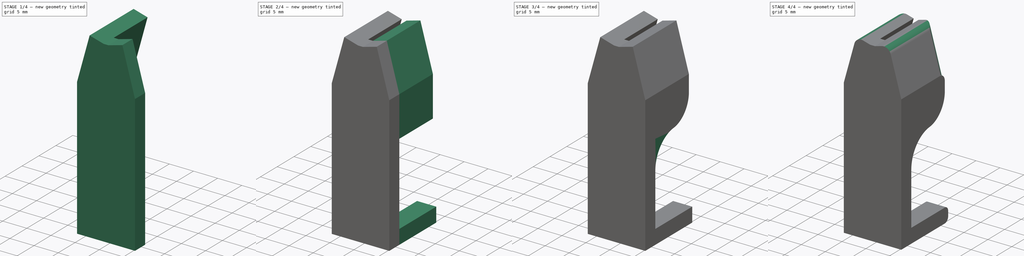
[diagram: build sequence overview — one tinted view per stage of 4, left to right]
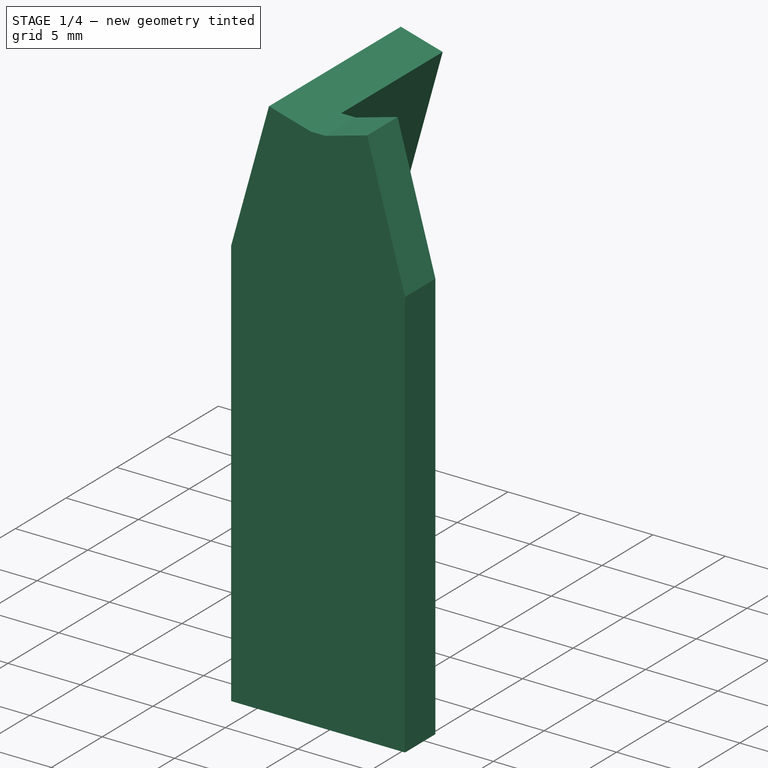
[diagram: stage 1 of 4 — iso view after this stage's code; geometry added in this stage tinted green]
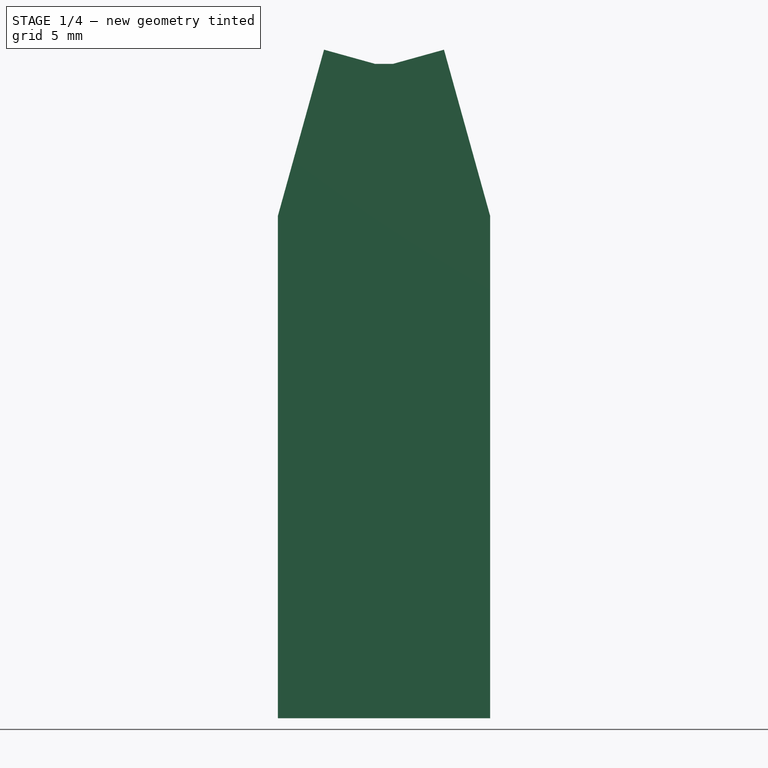
[diagram: stage 1 of 4 — front view after this stage's code; geometry added in this stage tinted green]
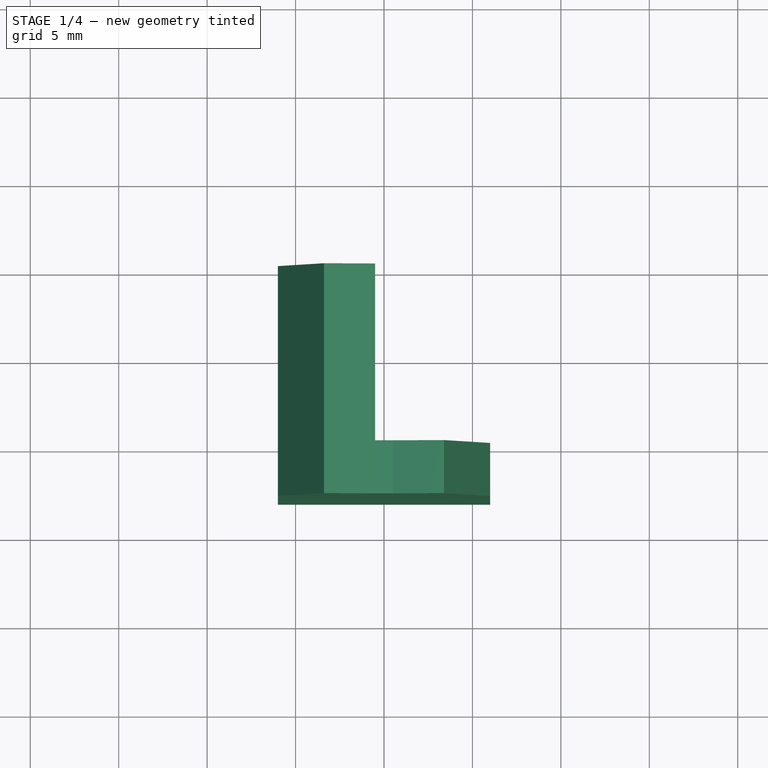
[diagram: stage 1 of 4 — top view after this stage's code; geometry added in this stage tinted green]
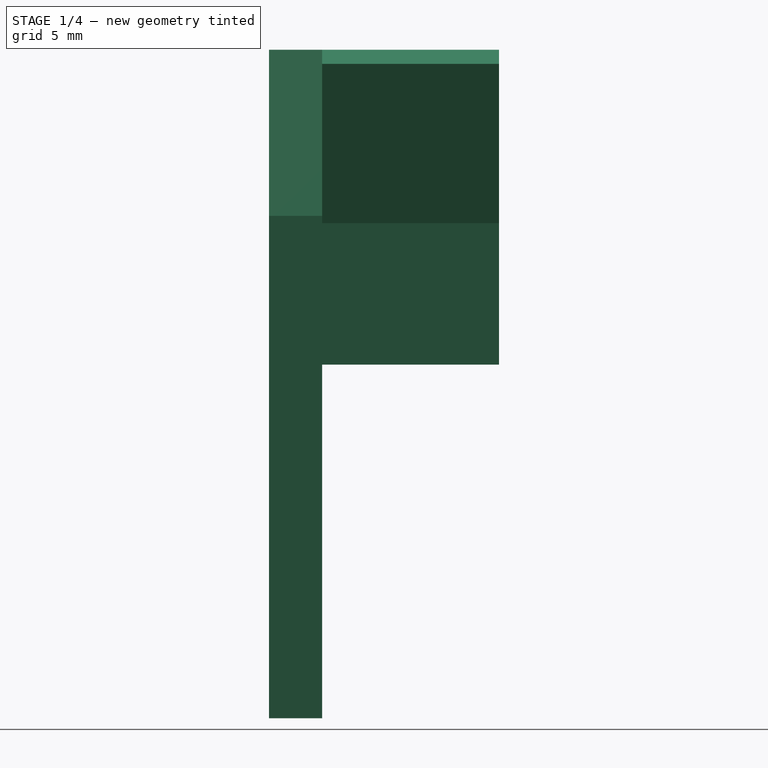
[diagram: stage 1 of 4 — right view after this stage's code; geometry added in this stage tinted green]
FCSTD DOCUMENT  (FreeCAD 0.20R)
Label: TagConnect_holder
License: All rights reserved
LicenseURL: http://en.wikipedia.org/wiki/All_rights_reserved
objects: PartDesign::Fillet×5, Sketcher::SketchObject×3, PartDesign::Pad×3, PartDesign::Mirrored×1, PartDesign::Body×1
note: 21 computed .brp shape members not serialized (recipe doc carries the construction recipe); baked Part::Feature solids carry a one-line shape summary decoded from their .brp

FEATURE [Sketcher::SketchObject] Sketch
  FullyConstrained = false
  MapMode = 5
  Placement = pos=(0,0,0) rot=(1,0,0;1.5708rad)
  Support = -> [XZ_Plane]
  sketch-geometry (7):
    g0: LineSegment StartX=-3 StartY=17 StartZ=0 EndX=-3 EndY=25 EndZ=0
    g1: LineSegment StartX=-3 StartY=25 StartZ=0 EndX=-0.5 EndY=34 EndZ=0
    g2: LineSegment StartX=-0.5 StartY=34 StartZ=0 EndX=-3.39055 EndY=34.8029 EndZ=0
    g3: LineSegment StartX=-3.39055 StartY=34.8029 StartZ=0 EndX=-6 EndY=25.4089 EndZ=0
    g4: LineSegment StartX=-6 StartY=25.4089 StartZ=0 EndX=-6 EndY=17 EndZ=0
    g5: LineSegment StartX=-6 StartY=17 StartZ=0 EndX=-3 EndY=17 EndZ=0
    g6: LineSegment StartX=0 StartY=0 StartZ=0 EndX=0 EndY=25.4373 EndZ=0
  constraints (20):
    c: Vertical(g0)
    c: Coincident(g0,g1)
    c: Coincident(g1,g2)
    c: Coincident(g2,g3)
    c: Coincident(g3,g4)
    c: Vertical(g4)
    c: Coincident(g4,g5)
    c: Coincident(g5,g0)
    c: Horizontal(g5)
    c: Perpendicular(g1,g2)
    c: Parallel(g3,g1)
    c: DistanceX(g5,g5) = 3
    c: Coincident(g6,g-1)
    c: PointOnObject(g6,g-2)
    c: DistanceX(g0,g6) = 3
    c: Equal(g2,g5)
    c: DistanceY(g0,g1) = 9
    c: DistanceX(g1,g6) = 0.5
    c: DistanceY(g0,g0) = 8
    c: DistanceY(g6,g1) = 34
FEATURE [PartDesign::Pad] Pad
  Direction = (0,-1,-2e-16)
  Length = 10
  Length2 = 10
  Placement = pos=(0,0,0) rot=(1,0,0;1.5708rad)
  Profile = -> Sketch
  ReferenceAxis = -> Sketch [N_Axis]
  Type = 0
FEATURE [Sketcher::SketchObject] Sketch001
  ExternalGeometry = -> [Pad]
  FullyConstrained = true
  MapMode = 5
  Placement = pos=(0,-10,-2.2e-15) rot=(1,0,0;1.5708rad)
  Support = -> [Pad]
  sketch-geometry (11):
    g0: LineSegment StartX=-3.39055 StartY=34.8029 StartZ=0 EndX=-6 EndY=25.4089 EndZ=0
    g1: LineSegment StartX=-6 StartY=25.4089 StartZ=0 EndX=-6 EndY=0 EndZ=0
    g2: LineSegment StartX=3.39055 StartY=34.8029 StartZ=0 EndX=6 EndY=25.4089 EndZ=0
    g3: LineSegment StartX=6 StartY=25.4089 StartZ=0 EndX=6 EndY=0 EndZ=0
    g4: GeomPoint X=0 Y=34.8029 Z=0
    g5: LineSegment StartX=-6 StartY=0 StartZ=0 EndX=-6 EndY=-3 EndZ=0
    g6: LineSegment StartX=-6 StartY=-3 StartZ=0 EndX=6 EndY=-3 EndZ=0
    g7: LineSegment StartX=6 StartY=-3 StartZ=0 EndX=6 EndY=0 EndZ=0
    g8: LineSegment StartX=-3.39055 StartY=34.8029 StartZ=0 EndX=-0.5 EndY=34 EndZ=0
    g9: LineSegment StartX=-0.5 StartY=34 StartZ=0 EndX=0.5 EndY=34 EndZ=0
    g10: LineSegment StartX=0.5 StartY=34 StartZ=0 EndX=3.39055 EndY=34.8029 EndZ=0
  constraints (27):
    c: Coincident(g0,g-4)
    c: Coincident(g1,g0)
    c: PointOnObject(g1,g-1)
    c: Vertical(g1)
    c: Vertical(g3)
    c: Coincident(g3,g2)
    c: Vertical(g4,g-1)
    c: Symmetric(g-3,g2,g4)
    c: Horizontal(g2,g0)
    c: Symmetric(g3,g1,g-1)
    c: Coincident(g1,g5)
    c: Vertical(g5)
    c: Coincident(g5,g6)
    c: Horizontal(g6)
    c: Coincident(g7,g3)
    c: Vertical(g7)
    c: DistanceY(g5,g5) = 3
    c: Coincident(g8,g0)
    c: Coincident(g8,g-5)
    c: Coincident(g9,g8)
    c: Horizontal(g9)
    c: Coincident(g10,g9)
    c: Coincident(g10,g2)
    c: Equal(g10,g8)
    c: Coincident(g0,g-3)
    c: Equal(g2,g0)
    c: Coincident(g6,g7)
FEATURE [PartDesign::Pad] Pad001
  BaseFeature = -> Pad
  Direction = (0,-1,-2e-16)
  Length = 3
  Length2 = 10
  Placement = pos=(0,0,0) rot=(1,0,0;1.5708rad)
  Profile = -> Sketch001
  ReferenceAxis = -> Sketch001 [N_Axis]
  Type = 0
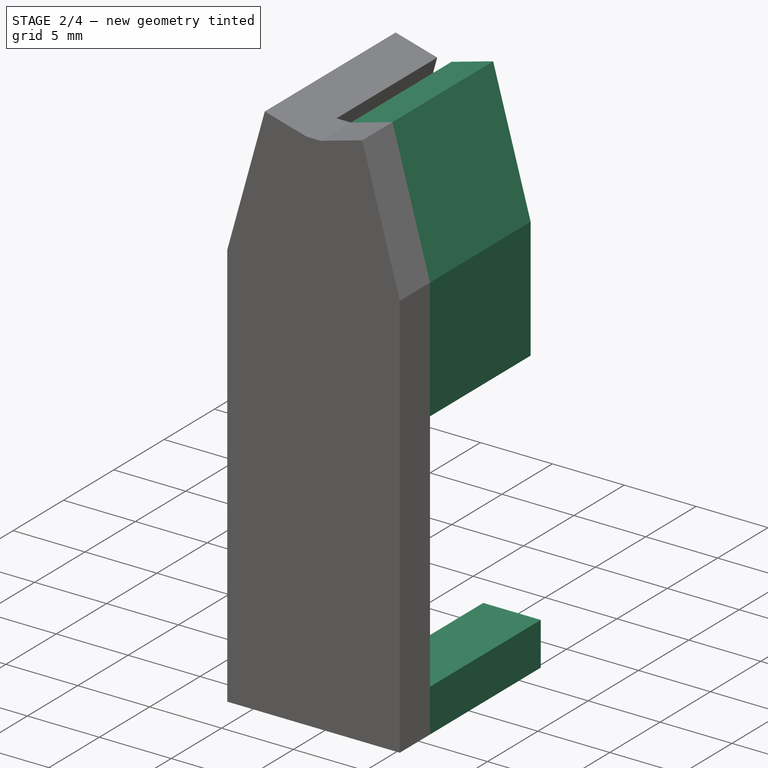
[diagram: stage 2 of 4 — iso view after this stage's code; geometry added in this stage tinted green]
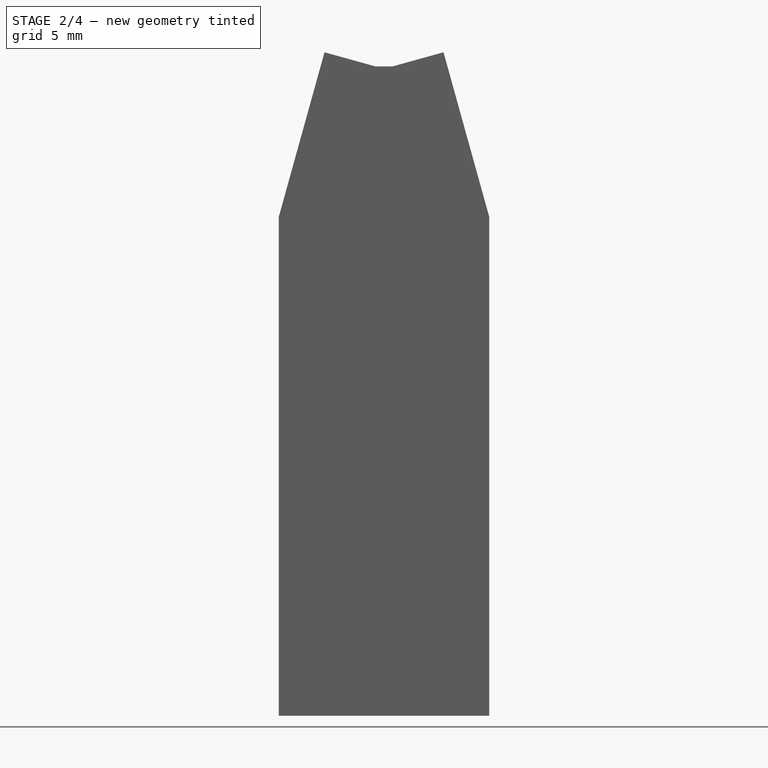
[diagram: stage 2 of 4 — front view after this stage's code; geometry added in this stage tinted green]
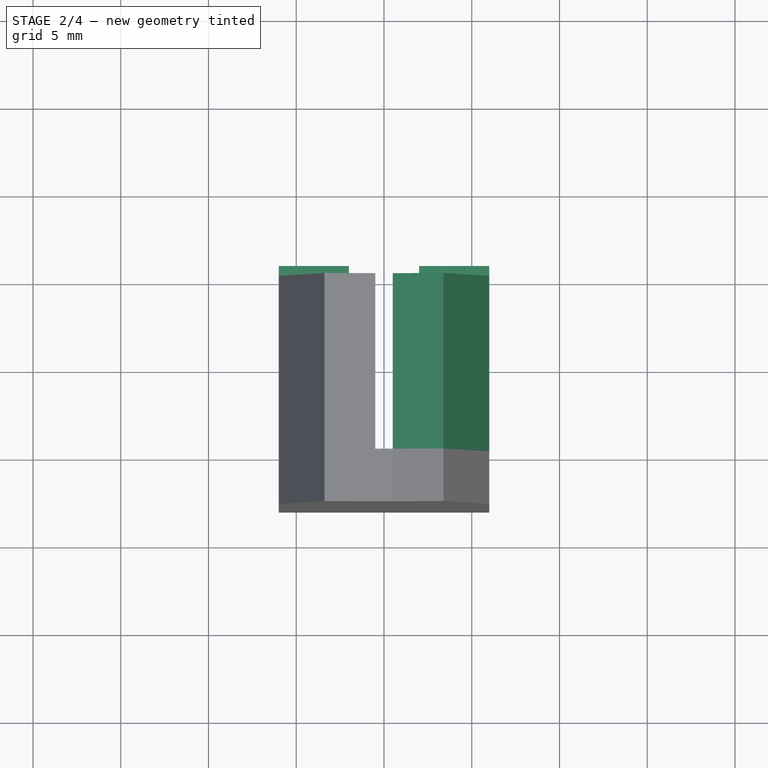
[diagram: stage 2 of 4 — top view after this stage's code; geometry added in this stage tinted green]
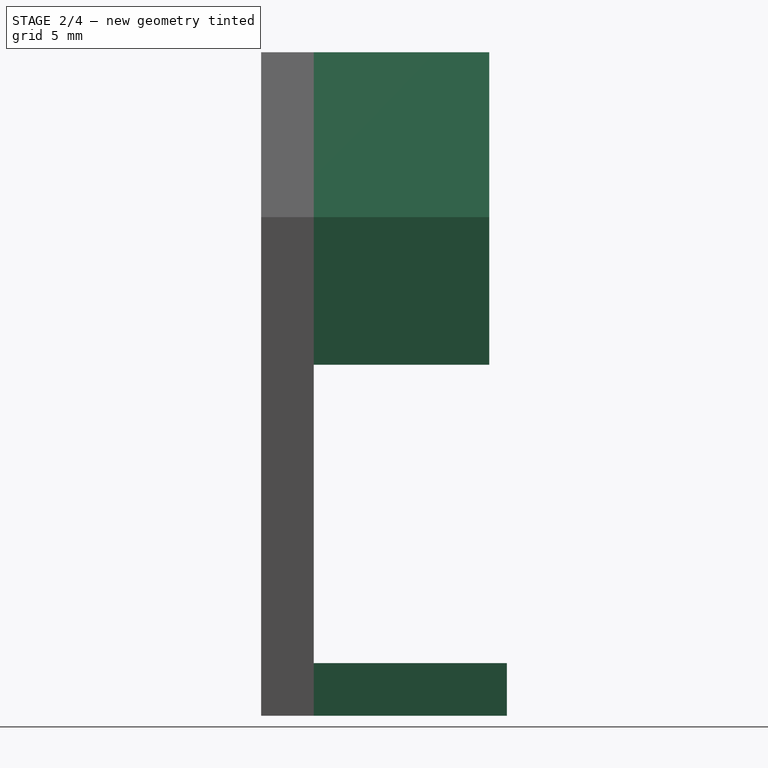
[diagram: stage 2 of 4 — right view after this stage's code; geometry added in this stage tinted green]
FEATURE [Sketcher::SketchObject] Sketch002
  ExternalGeometry = -> [Pad001]
  FullyConstrained = true
  MapMode = 5
  Placement = pos=(0,-10,-2e-15) rot=(-1,0,0;1.5708rad)
  Support = -> [Pad001]
  sketch-geometry (4):
    g0: LineSegment StartX=-6 StartY=3 StartZ=0 EndX=-2 EndY=3 EndZ=0
    g1: LineSegment StartX=-2 StartY=3 StartZ=0 EndX=-2 EndY=9e-16 EndZ=0
    g2: LineSegment StartX=-2 StartY=8e-16 StartZ=0 EndX=-6 EndY=8e-16 EndZ=0
    g3: LineSegment StartX=-6 StartY=8e-16 StartZ=0 EndX=-6 EndY=3 EndZ=0
  constraints (11):
    c: Coincident(g0,g1)
    c: Coincident(g2,g3)
    c: Coincident(g3,g0)
    c: Horizontal(g0)
    c: Horizontal(g2)
    c: Vertical(g1)
    c: Vertical(g3)
    c: Coincident(g0,g-3)
    c: Coincident(g2,g1)
    c: DistanceX(g0,g0) = 4
    c: DistanceY(g3,g3) = 3
FEATURE [PartDesign::Pad] Pad002
  BaseFeature = -> Pad001
  Direction = (0,1,2e-16)
  Length = 11
  Length2 = 10
  Placement = pos=(0,0,0) rot=(1,0,0;1.5708rad)
  Profile = -> Sketch002
  ReferenceAxis = -> Sketch002 [N_Axis]
  Type = 0
FEATURE [PartDesign::Mirrored] Mirrored
  BaseFeature = -> Pad002
  MirrorPlane = -> Sketch [V_Axis]
  Originals = -> [Pad,Pad002]
  Placement = pos=(0,0,0) rot=(1,0,0;1.5708rad)
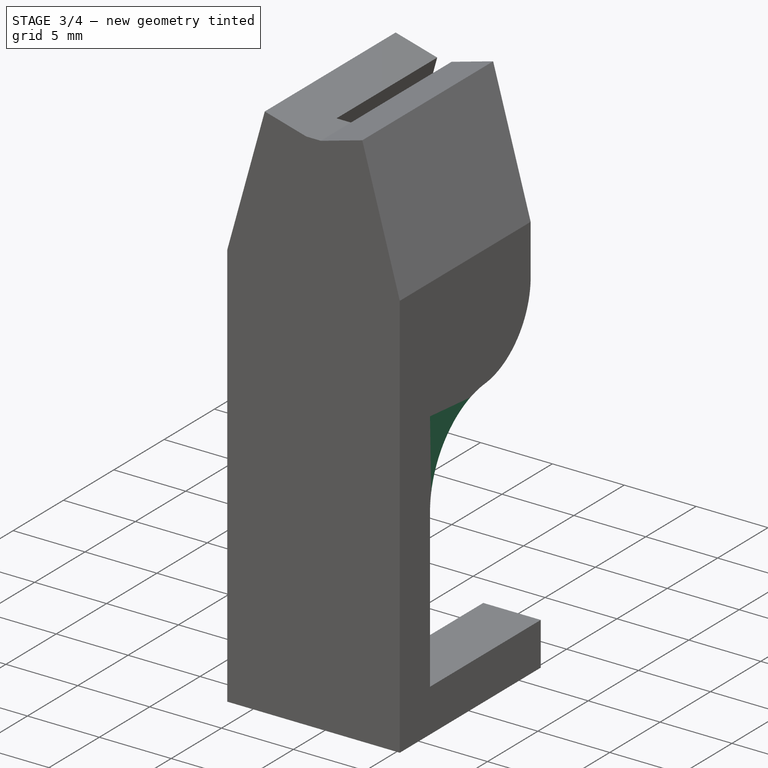
[diagram: stage 3 of 4 — iso view after this stage's code; geometry added in this stage tinted green]
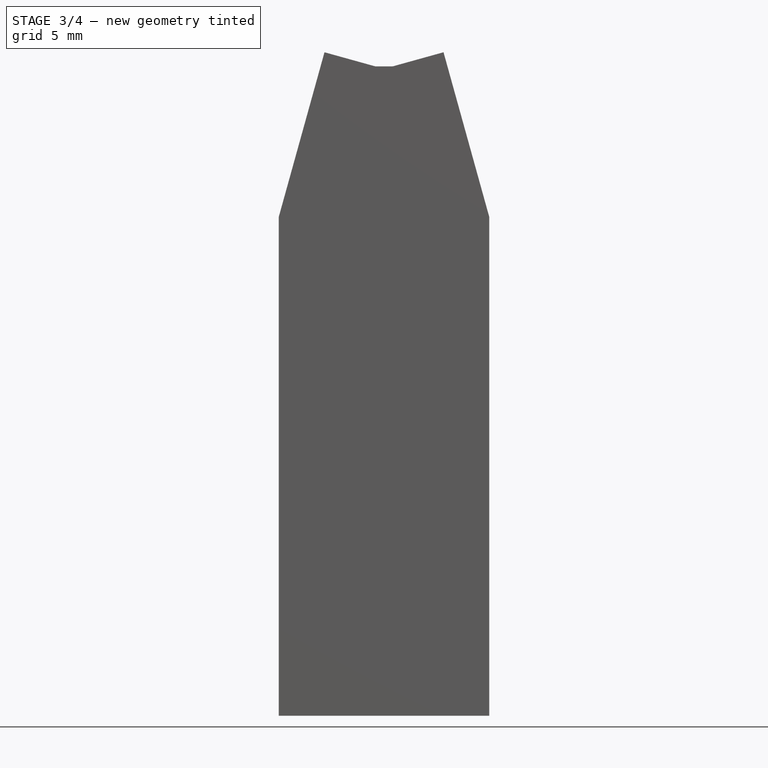
[diagram: stage 3 of 4 — front view after this stage's code; geometry added in this stage tinted green]
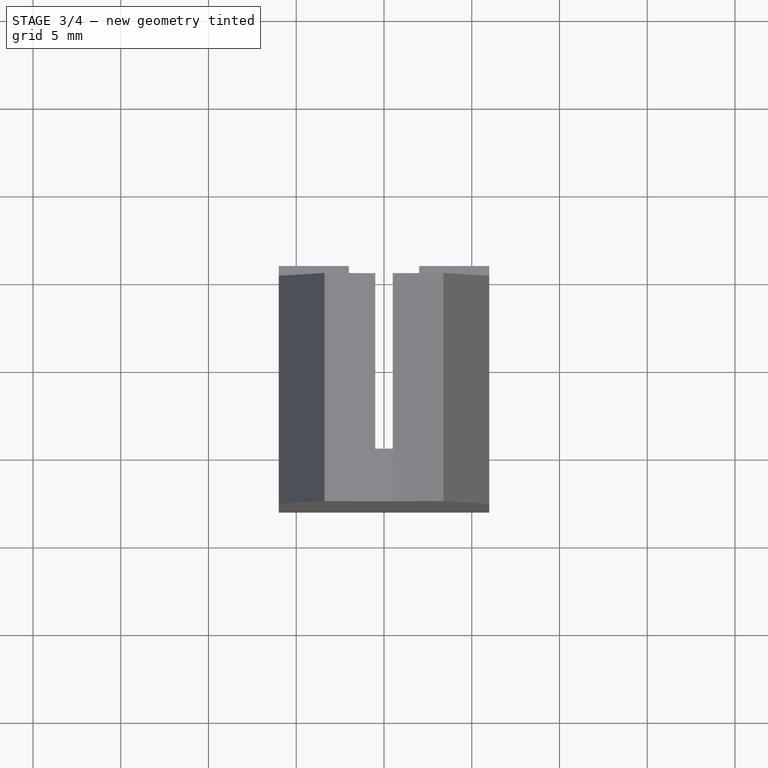
[diagram: stage 3 of 4 — top view after this stage's code; geometry added in this stage tinted green]
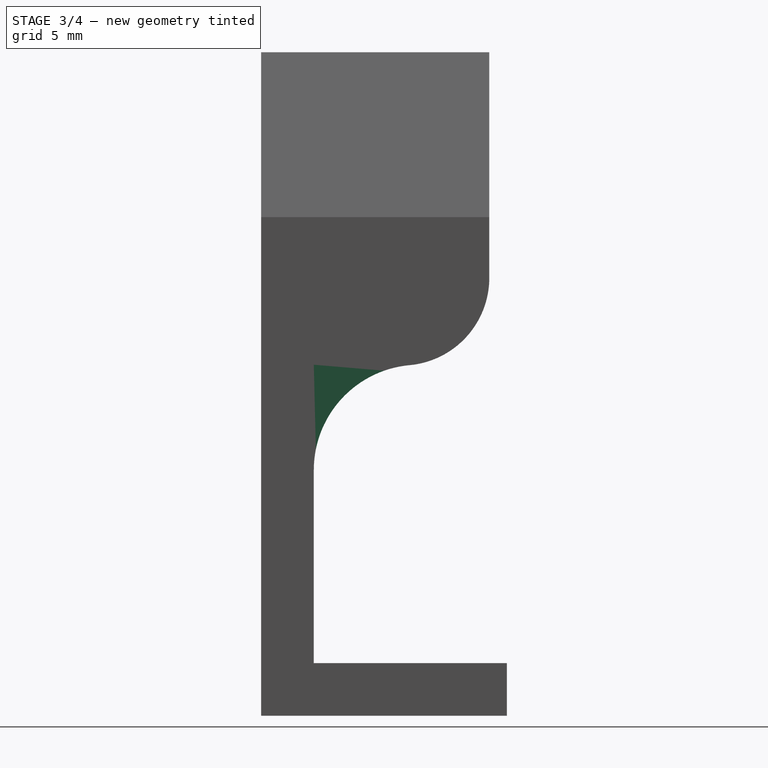
[diagram: stage 3 of 4 — right view after this stage's code; geometry added in this stage tinted green]
FEATURE [PartDesign::Fillet] Fillet
  Base = -> Mirrored [Edge24,Edge30]
  BaseFeature = -> Mirrored
  Placement = pos=(0,0,0) rot=(1,0,0;1.5708rad)
  Radius = 6
  SupportTransform = false
  UseAllEdges = false
FEATURE [PartDesign::Fillet] Fillet001
  Base = -> Fillet [Edge73,Edge91]
  BaseFeature = -> Fillet
  Placement = pos=(0,0,0) rot=(1,0,0;1.5708rad)
  Radius = 5
  SupportTransform = false
  UseAllEdges = false
FEATURE [PartDesign::Fillet] Fillet002
  Base = -> Fillet001 [Edge15,Edge19]
  BaseFeature = -> Fillet001
  Placement = pos=(0,0,0) rot=(1,0,0;1.5708rad)
  Radius = 1.5
  SupportTransform = false
  UseAllEdges = false
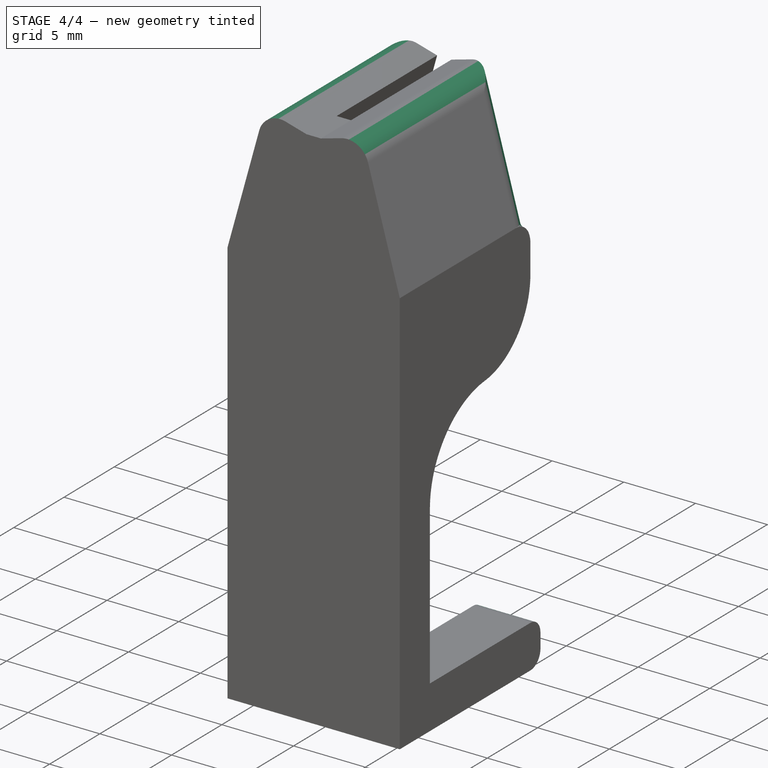
[diagram: stage 4 of 4 — iso view after this stage's code; geometry added in this stage tinted green]
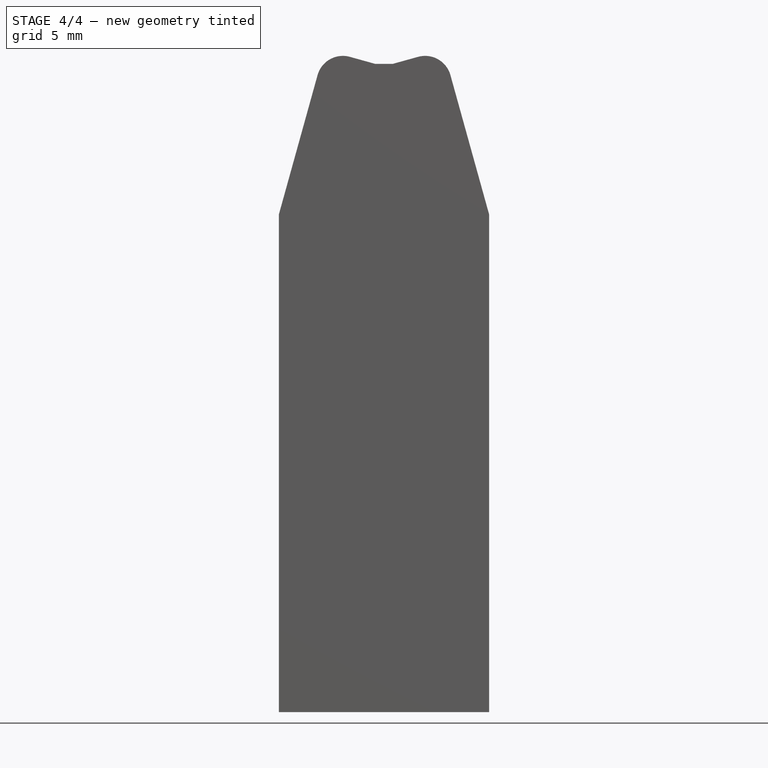
[diagram: stage 4 of 4 — front view after this stage's code; geometry added in this stage tinted green]
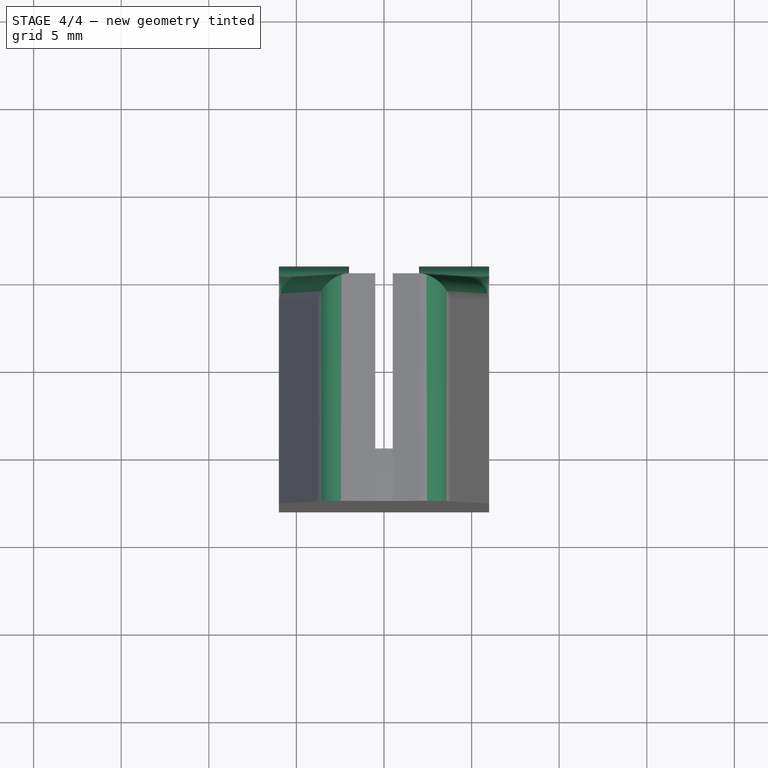
[diagram: stage 4 of 4 — top view after this stage's code; geometry added in this stage tinted green]
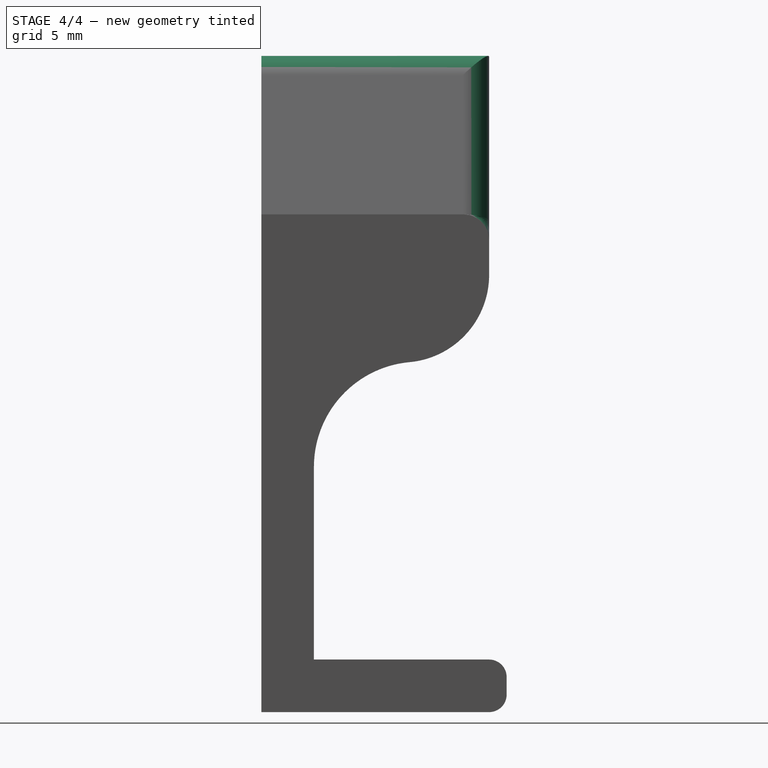
[diagram: stage 4 of 4 — right view after this stage's code; geometry added in this stage tinted green]
FEATURE [PartDesign::Fillet] Fillet003
  Base = -> Fillet002 [Edge93,Edge88,Edge101,Edge103,Edge100,Edge98]
  BaseFeature = -> Fillet002
  Placement = pos=(0,0,0) rot=(1,0,0;1.5708rad)
  Radius = 1.5
  SupportTransform = false
  UseAllEdges = false
FEATURE [PartDesign::Fillet] Fillet004
  Base = -> Fillet003 [Edge78,Edge102,Edge100,Edge75]
  BaseFeature = -> Fillet003
  Placement = pos=(0,0,0) rot=(1,0,0;1.5708rad)
  Radius = 1
  SupportTransform = false
  UseAllEdges = false
FEATURE [PartDesign::Body] Body
  Group = -> [Sketch,Pad,Sketch001,Pad001,Sketch002,Pad002,Mirrored,Fillet,Fillet001,Fillet002,Fillet003,Fillet004]
  Origin = -> Origin
  Tip = -> Fillet004
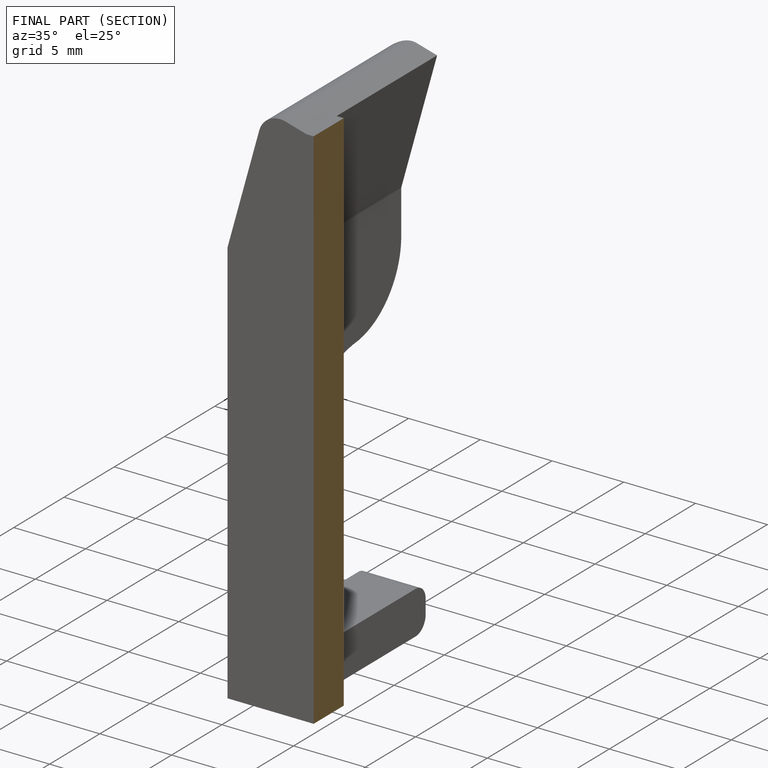
[diagram: finished part — half-section view (interior)]
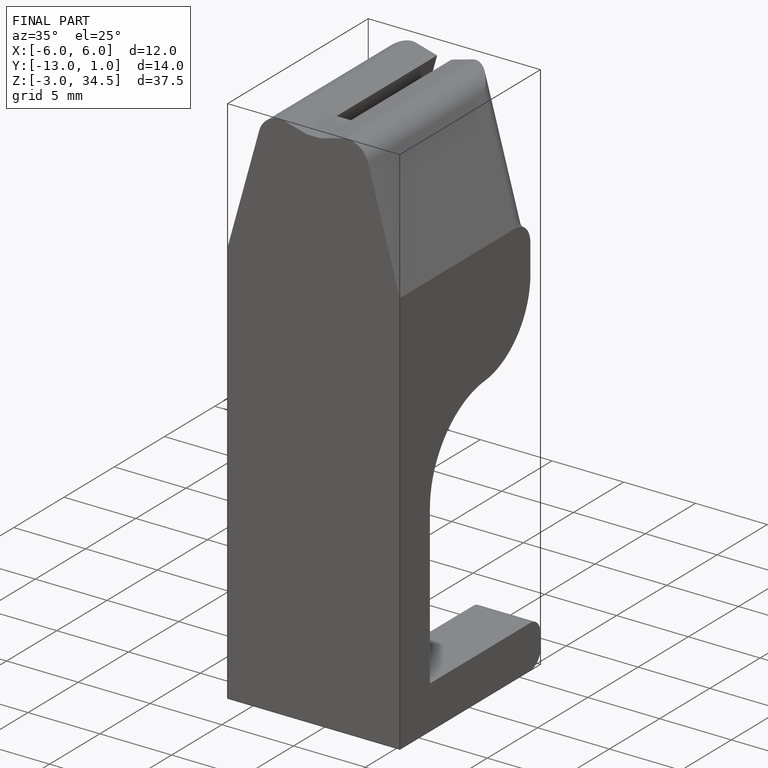
[diagram: finished part — iso view with bounding-box wireframe]
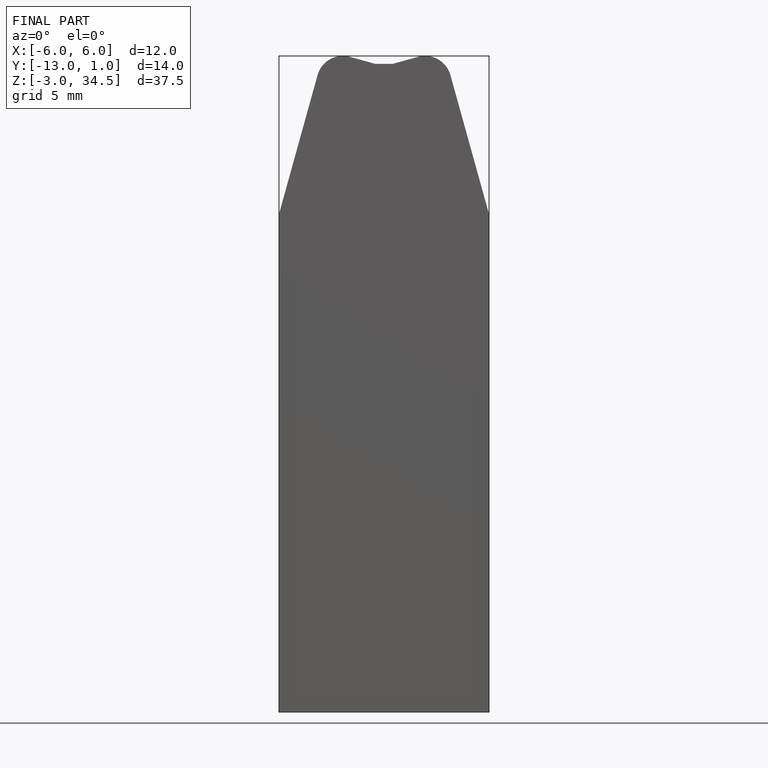
[diagram: finished part — front view with bounding-box wireframe]
